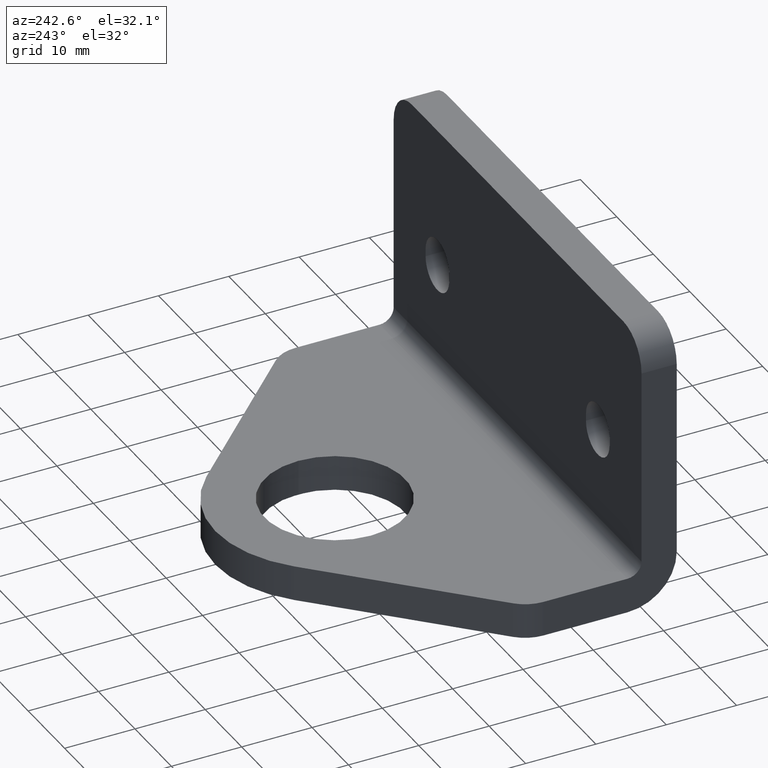
[diagram: clean part render]
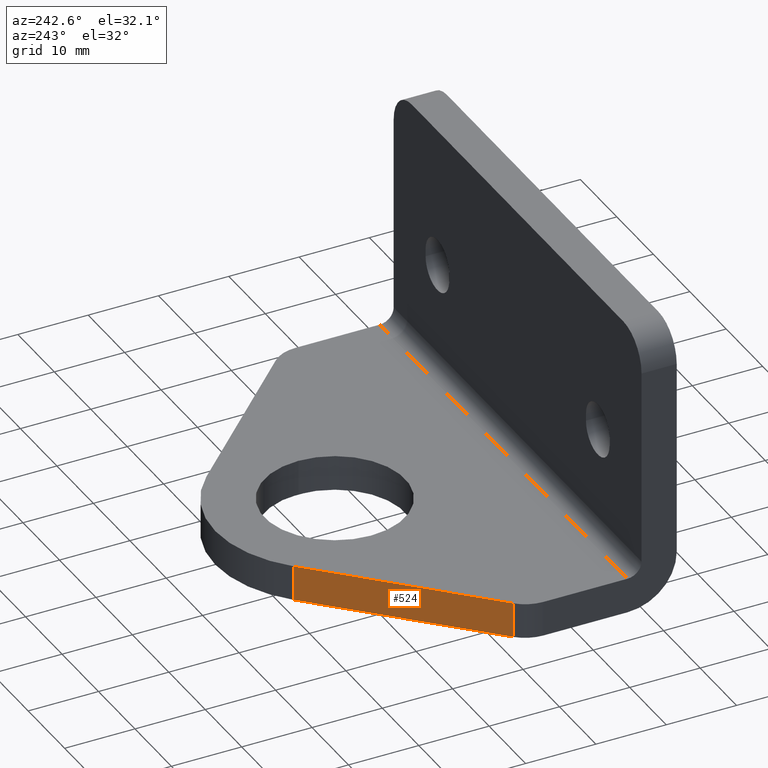
[diagram: same view with one face highlighted and labeled with its STEP entity id]
A machine part, auxiliary view. The second image highlights one B-rep face of the part: STEP entity #524.
In plain terms, the highlighted planar face has unit normal (-0.7071, 0.7071, 0).
Its self-contained STEP definition (entity closure, byte-faithful):
#34=PLANE('',#598);
#61=FACE_OUTER_BOUND('',#95,.T.);
#95=EDGE_LOOP('',(#460,#461,#462,#463));
#140=LINE('',#877,#189);
#144=LINE('',#894,#193);
#145=LINE('',#897,#194);
#146=LINE('',#898,#195);
#189=VECTOR('',#722,10.);
#193=VECTOR('',#740,10.);
#194=VECTOR('',#743,10.);
#195=VECTOR('',#744,10.);
#259=VERTEX_POINT('',#874);
#260=VERTEX_POINT('',#876);
#266=VERTEX_POINT('',#892);
#267=VERTEX_POINT('',#896);
#325=EDGE_CURVE('',#260,#259,#140,.T.);
#334=EDGE_CURVE('',#259,#266,#144,.T.);
#335=EDGE_CURVE('',#267,#266,#145,.T.);
#336=EDGE_CURVE('',#260,#267,#146,.T.);
#460=ORIENTED_EDGE('',*,*,#325,.T.);
#461=ORIENTED_EDGE('',*,*,#334,.T.);
#462=ORIENTED_EDGE('',*,*,#335,.F.);
#463=ORIENTED_EDGE('',*,*,#336,.F.);
#524=ADVANCED_FACE('',(#61),#34,.T.);
#598=AXIS2_PLACEMENT_3D('',#895,#741,#742);
#722=DIRECTION('',(-0.707106781186541,-0.707106781186554,0.));
#740=DIRECTION('',(0.,0.,1.));
#741=DIRECTION('center_axis',(-0.707106781186554,0.707106781186541,0.));
#742=DIRECTION('ref_axis',(-0.707106781186541,-0.707106781186554,0.));
#743=DIRECTION('',(-0.707106781186541,-0.707106781186554,0.));
#744=DIRECTION('',(0.,0.,1.));
#874=CARTESIAN_POINT('',(25.4687211214157,248.575914631202,0.));
#876=CARTESIAN_POINT('',(45.9834398471767,269.090633356964,0.));
#877=CARTESIAN_POINT('',(45.9834398471767,269.090633356964,0.));
#892=CARTESIAN_POINT('',(25.4687211214157,248.575914631202,5.));
#894=CARTESIAN_POINT('',(25.4687211214157,248.575914631202,0.));
#895=CARTESIAN_POINT('Origin',(45.9834398471767,269.090633356964,0.));
#896=CARTESIAN_POINT('',(45.9834398471767,269.090633356964,5.));
#897=CARTESIAN_POINT('',(45.9834398471767,269.090633356964,5.));
#898=CARTESIAN_POINT('',(45.9834398471767,269.090633356964,0.));